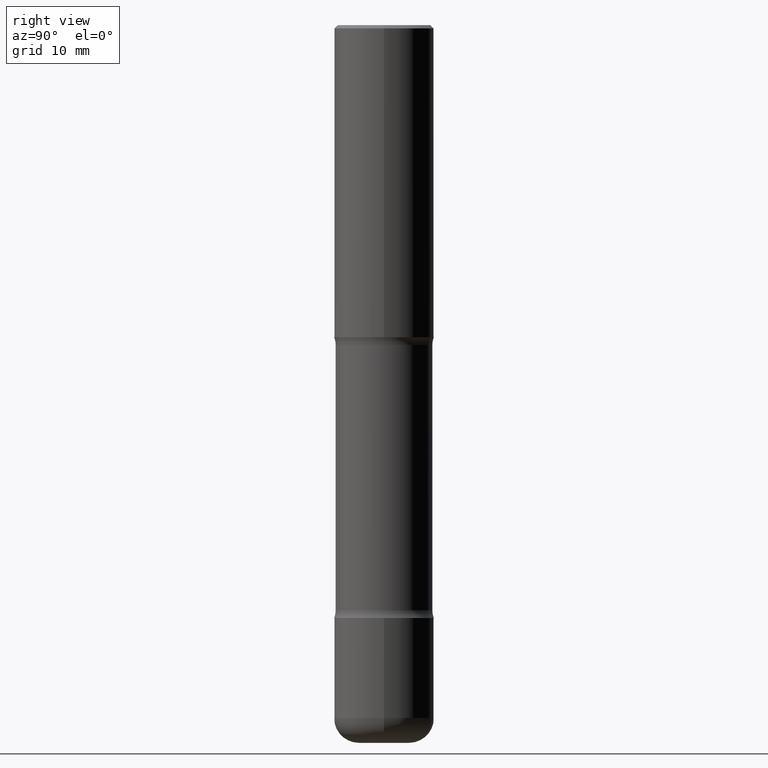
[diagram: clean part render]
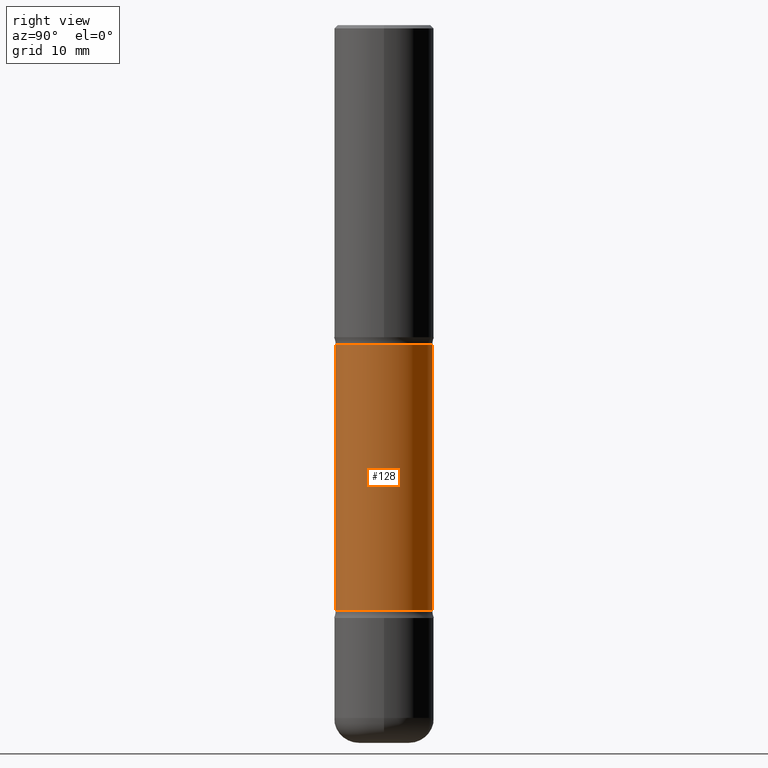
[diagram: same view with one face highlighted and labeled with its STEP entity id]
A machine part, right view. The second image highlights one B-rep face of the part: STEP entity #128.
In plain terms, the highlighted cylindrical surface (partial cylindrical patch) has radius 7.747 mm, axis along (0, -0, -1).
Its self-contained STEP definition (entity closure, byte-faithful):
#6 = VECTOR ( 'NONE', #373, 39.37007874015748143 ) ;
#13 = VERTEX_POINT ( 'NONE', #327 ) ;
#14 = CARTESIAN_POINT ( 'NONE',  ( 1.112359725384078225E-28, -1.573429045124212958E-14, -4.527600000000000513 ) ) ;
#24 = EDGE_CURVE ( 'NONE', #382, #209, #275, .T. ) ;
#31 = AXIS2_PLACEMENT_3D ( 'NONE', #14, #289, #525 ) ;
#60 = CARTESIAN_POINT ( 'NONE',  ( 9.023830806565153848E-29, -1.289277884509281722E-14, -3.691327743043726795 ) ) ;
#70 = FACE_OUTER_BOUND ( 'NONE', #463, .T. ) ;
#107 = AXIS2_PLACEMENT_3D ( 'NONE', #400, #273, #315 ) ;
#128 = ADVANCED_FACE ( 'NONE', ( #70 ), #223, .T. ) ;
#141 = EDGE_CURVE ( 'NONE', #417, #382, #282, .T. ) ;
#166 = EDGE_CURVE ( 'NONE', #417, #13, #494, .T. ) ;
#202 = AXIS2_PLACEMENT_3D ( 'NONE', #60, #329, #495 ) ;
#204 = CARTESIAN_POINT ( 'NONE',  ( 2.129803616694359388E-15, 0.3049999999999927769, -2.017372256956274867 ) ) ;
#209 = VERTEX_POINT ( 'NONE', #407 ) ;
#223 = CYLINDRICAL_SURFACE ( 'NONE', #31, 0.3049999999999999378 ) ;
#234 = EDGE_CURVE ( 'NONE', #13, #209, #237, .T. ) ;
#237 = LINE ( 'NONE', #371, #259 ) ;
#259 = VECTOR ( 'NONE', #529, 39.37007874015748143 ) ;
#273 = DIRECTION ( 'NONE',  ( 2.510864649412157880E-29, -3.397830769241806549E-15, -1.000000000000000000 ) ) ;
#275 = CIRCLE ( 'NONE', #202, 0.3049999999999999378 ) ;
#282 = LINE ( 'NONE', #449, #6 ) ;
#289 = DIRECTION ( 'NONE',  ( 2.510864649412157880E-29, -3.397830769241806549E-15, -1.000000000000000000 ) ) ;
#301 = ORIENTED_EDGE ( 'NONE', *, *, #141, .F. ) ;
#315 = DIRECTION ( 'NONE',  ( 6.982962677686266711E-15, 1.000000000000000000, -3.582751467100673306E-15 ) ) ;
#327 = CARTESIAN_POINT ( 'NONE',  ( -2.126582866859183647E-15, -0.3050000000000072098, -2.017372256956272647 ) ) ;
#329 = DIRECTION ( 'NONE',  ( 2.510864649412157880E-29, -3.397830769241806549E-15, -1.000000000000000000 ) ) ;
#338 = ORIENTED_EDGE ( 'NONE', *, *, #24, .F. ) ;
#369 = ORIENTED_EDGE ( 'NONE', *, *, #166, .T. ) ;
#371 = CARTESIAN_POINT ( 'NONE',  ( -2.092451889320205392E-15, -0.3050000000000157030, -4.527599999999998737 ) ) ;
#373 = DIRECTION ( 'NONE',  ( 2.510864649412157600E-29, -3.397830769241806549E-15, -1.000000000000000000 ) ) ;
#382 = VERTEX_POINT ( 'NONE', #421 ) ;
#400 = CARTESIAN_POINT ( 'NONE',  ( 4.820755151858623476E-29, -7.204961388123744804E-15, -2.017372256956273979 ) ) ;
#407 = CARTESIAN_POINT ( 'NONE',  ( -2.126582866859139470E-15, -0.3050000000000128719, -3.691327743043725906 ) ) ;
#417 = VERTEX_POINT ( 'NONE', #204 ) ;
#421 = CARTESIAN_POINT ( 'NONE',  ( 2.129803616694401198E-15, 0.3049999999999870592, -3.691327743043728127 ) ) ;
#449 = CARTESIAN_POINT ( 'NONE',  ( 2.129803616694422103E-15, 0.3049999999999842282, -4.527600000000001401 ) ) ;
#461 = ORIENTED_EDGE ( 'NONE', *, *, #234, .T. ) ;
#463 = EDGE_LOOP ( 'NONE', ( #369, #461, #338, #301 ) ) ;
#494 = CIRCLE ( 'NONE', #107, 0.3049999999999999933 ) ;
#495 = DIRECTION ( 'NONE',  ( 6.982962677686266711E-15, 1.000000000000000000, -3.582751467100674095E-15 ) ) ;
#525 = DIRECTION ( 'NONE',  ( 6.982962677686266711E-15, 1.000000000000000000, -3.582751467100674095E-15 ) ) ;
#529 = DIRECTION ( 'NONE',  ( 2.510864649412157600E-29, -3.397830769241806549E-15, -1.000000000000000000 ) ) ;